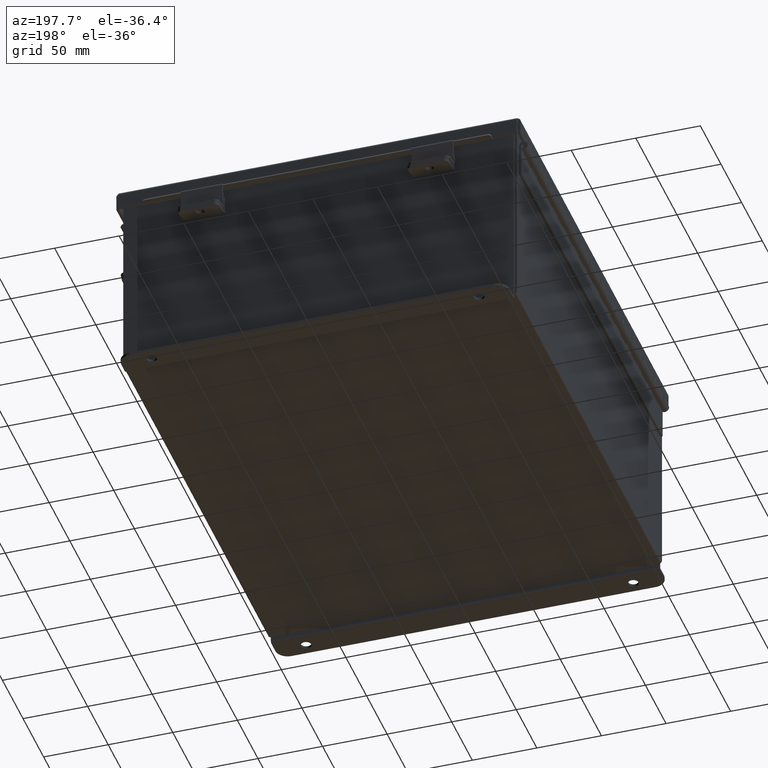
[diagram: clean part render]
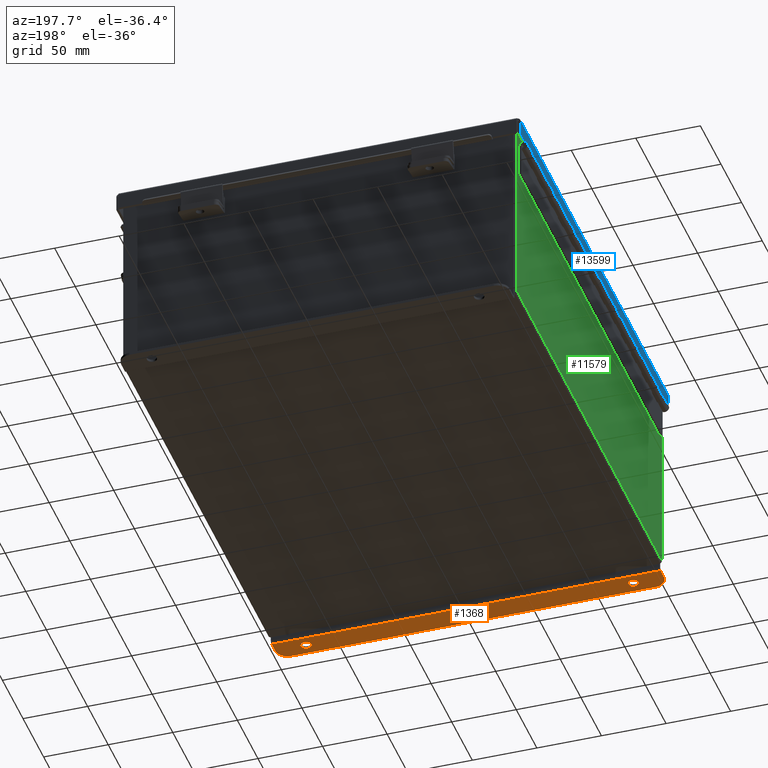
[diagram: same view with three faces highlighted in distinct colors, each labeled with its STEP entity id]
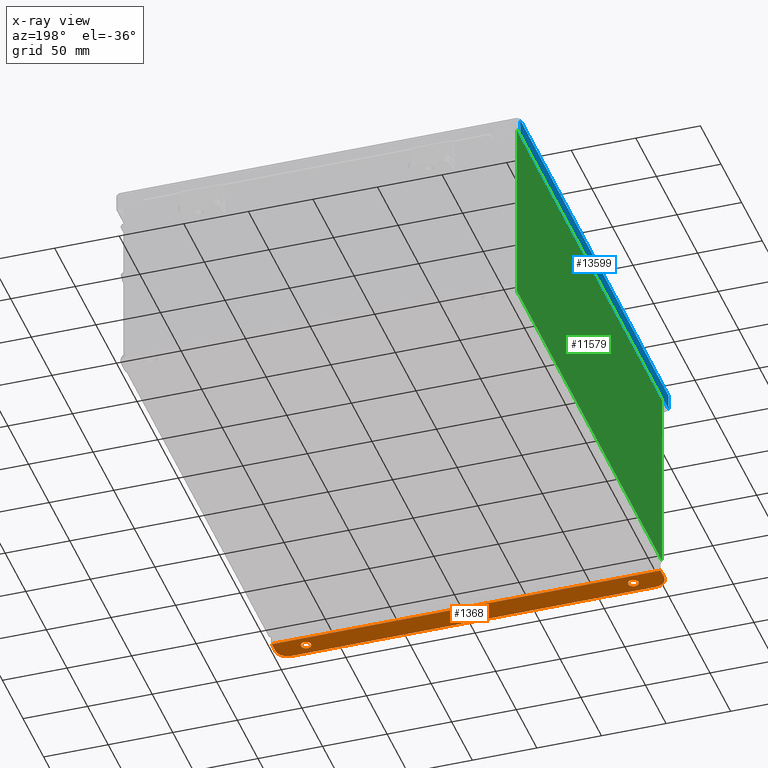
[diagram: x-ray of the same camera — body ghosted, the three highlighted faces saturated]
A machine part, auxiliary view with three faces highlighted in distinct colors.
The next image is the same camera in x-ray (body ghosted, the three faces saturated) — at least one of them is partly hidden behind the body in this view.
Their STEP definitions:

[orange] entity #1368 — the highlighted planar face has unit normal (0, -0, 1).
#54 = EDGE_CURVE ( 'NONE', #14708, #2206, #18965, .T. ) ;
#479 = DIRECTION ( 'NONE',  ( 0.0000000000000000000, -3.362274453740631800E-015, -1.000000000000000000 ) ) ;
#543 = FACE_OUTER_BOUND ( 'NONE', #10640, .T. ) ;
#554 = CARTESIAN_POINT ( 'NONE',  ( 5.925299999999999100, -1.092739197465705300E-014, -3.187000000000004700 ) ) ;
#676 = DIRECTION ( 'NONE',  ( 0.0000000000000000000, -3.362274453740631800E-015, -1.000000000000000000 ) ) ;
#754 = VERTEX_POINT ( 'NONE', #8982 ) ;
#857 = CARTESIAN_POINT ( 'NONE',  ( 5.550299999999999100, 0.7378000000000000100, -3.187000000000002900 ) ) ;
#1368 = ADVANCED_FACE ( 'NONE', ( #8362, #12270, #543 ), #18730, .F. ) ;
#2101 = ORIENTED_EDGE ( 'NONE', *, *, #15542, .F. ) ;
#2206 = VERTEX_POINT ( 'NONE', #18286 ) ;
#2280 = AXIS2_PLACEMENT_3D ( 'NONE', #17185, #7561, #3155 ) ;
#2465 = CARTESIAN_POINT ( 'NONE',  ( -5.550299999999999100, 0.7377999999999912400, -3.187000000000002900 ) ) ;
#2615 = VECTOR ( 'NONE', #7885, 39.37007874015748100 ) ;
#2813 = AXIS2_PLACEMENT_3D ( 'NONE', #9266, #479, #10767 ) ;
#2926 = CARTESIAN_POINT ( 'NONE',  ( -5.925300000000001800, -1.966930555438269700E-014, -3.187000000000000300 ) ) ;
#3155 = DIRECTION ( 'NONE',  ( -4.919856193148104900E-031, -1.000000000000000000, 3.702694488566362300E-015 ) ) ;
#3640 = CARTESIAN_POINT ( 'NONE',  ( 4.987799999999998200, 0.3627999999999997300, -3.187000000000001200 ) ) ;
#3952 = DIRECTION ( 'NONE',  ( 1.000000000000000000, 4.910036603141682400E-031, -0.0000000000000000000 ) ) ;
#4119 = EDGE_CURVE ( 'NONE', #13431, #16271, #6941, .T. ) ;
#4193 = DIRECTION ( 'NONE',  ( 1.000000000000000000, 4.910036603141682400E-031, 0.0000000000000000000 ) ) ;
#4754 = CARTESIAN_POINT ( 'NONE',  ( 5.925299999999999100, 0.3628000000000008400, -3.187000000000001200 ) ) ;
#4765 = EDGE_LOOP ( 'NONE', ( #8567, #18710 ) ) ;
#5093 = DIRECTION ( 'NONE',  ( 0.0000000000000000000, 1.000000000000000000, -3.502369222646487000E-015 ) ) ;
#5754 = LINE ( 'NONE', #14468, #12154 ) ;
#6369 = AXIS2_PLACEMENT_3D ( 'NONE', #3640, #13889, #5093 ) ;
#6416 = CARTESIAN_POINT ( 'NONE',  ( 5.550299999999999100, 0.3628000000000008400, -3.187000000000005600 ) ) ;
#6941 = CIRCLE ( 'NONE', #7780, 0.3750000000000000600 ) ;
#7135 = CARTESIAN_POINT ( 'NONE',  ( -4.987800000000000900, 0.3627999999999997300, -3.187000000000001200 ) ) ;
#7546 = CARTESIAN_POINT ( 'NONE',  ( 5.925299999999999100, 0.01300000000000120000, -3.187000000000004700 ) ) ;
#7561 = DIRECTION ( 'NONE',  ( 0.0000000000000000000, 3.702694488566362300E-015, 1.000000000000000000 ) ) ;
#7648 = EDGE_CURVE ( 'NONE', #16271, #11989, #5754, .T. ) ;
#7736 = EDGE_CURVE ( 'NONE', #14708, #13431, #8255, .T. ) ;
#7780 = AXIS2_PLACEMENT_3D ( 'NONE', #9353, #11834, #12339 ) ;
#7802 = VECTOR ( 'NONE', #10203, 39.37007874015748100 ) ;
#7885 = DIRECTION ( 'NONE',  ( -4.919856193148104900E-031, -1.000000000000000000, 3.702694488566362300E-015 ) ) ;
#7897 = DIRECTION ( 'NONE',  ( 0.0000000000000000000, -1.000000000000000000, 4.370956789862820400E-015 ) ) ;
#8255 = LINE ( 'NONE', #2926, #7802 ) ;
#8362 = FACE_BOUND ( 'NONE', #16812, .T. ) ;
#8567 = ORIENTED_EDGE ( 'NONE', *, *, #10019, .F. ) ;
#8584 = DIRECTION ( 'NONE',  ( 0.0000000000000000000, 1.000000000000000000, -3.502369222646487000E-015 ) ) ;
#8982 = CARTESIAN_POINT ( 'NONE',  ( -4.987800000000000900, 0.5187999999999999300, -3.187000000000001600 ) ) ;
#9033 = ORIENTED_EDGE ( 'NONE', *, *, #13463, .T. ) ;
#9266 = CARTESIAN_POINT ( 'NONE',  ( 4.987799999999998200, 0.3627999999999997300, -3.187000000000001200 ) ) ;
#9267 = ORIENTED_EDGE ( 'NONE', *, *, #11878, .T. ) ;
#9353 = CARTESIAN_POINT ( 'NONE',  ( -5.550299999999999100, 0.3627999999999997300, -3.187000000000005600 ) ) ;
#9411 = VERTEX_POINT ( 'NONE', #4754 ) ;
#9469 = CARTESIAN_POINT ( 'NONE',  ( -4.987800000000000900, 0.3627999999999997300, -3.187000000000001200 ) ) ;
#10019 = EDGE_CURVE ( 'NONE', #15065, #10142, #18543, .T. ) ;
#10142 = VERTEX_POINT ( 'NONE', #15300 ) ;
#10157 = CIRCLE ( 'NONE', #13105, 0.1560000000000001900 ) ;
#10203 = DIRECTION ( 'NONE',  ( 4.919856193148104900E-031, 1.000000000000000000, -3.702694488566362300E-015 ) ) ;
#10602 = ORIENTED_EDGE ( 'NONE', *, *, #15230, .F. ) ;
#10640 = EDGE_LOOP ( 'NONE', ( #15756, #11064, #16346, #9033, #9267, #11599 ) ) ;
#10767 = DIRECTION ( 'NONE',  ( 0.0000000000000000000, 1.000000000000000000, -3.502369222646487000E-015 ) ) ;
#10876 = CIRCLE ( 'NONE', #13487, 0.1560000000000001900 ) ;
#10959 = DIRECTION ( 'NONE',  ( 0.0000000000000000000, 1.000000000000000000, -3.502369222646487000E-015 ) ) ;
#11064 = ORIENTED_EDGE ( 'NONE', *, *, #4119, .T. ) ;
#11599 = ORIENTED_EDGE ( 'NONE', *, *, #54, .F. ) ;
#11805 = AXIS2_PLACEMENT_3D ( 'NONE', #6416, #16700, #7897 ) ;
#11834 = DIRECTION ( 'NONE',  ( -0.0000000000000000000, -3.702694488566362300E-015, -1.000000000000000000 ) ) ;
#11852 = EDGE_CURVE ( 'NONE', #10142, #15065, #18239, .T. ) ;
#11878 = EDGE_CURVE ( 'NONE', #9411, #2206, #17795, .T. ) ;
#11989 = VERTEX_POINT ( 'NONE', #857 ) ;
#12154 = VECTOR ( 'NONE', #4193, 39.37007874015748100 ) ;
#12270 = FACE_BOUND ( 'NONE', #4765, .T. ) ;
#12339 = DIRECTION ( 'NONE',  ( 0.0000000000000000000, -1.000000000000000000, 4.370956789862820400E-015 ) ) ;
#12963 = VERTEX_POINT ( 'NONE', #16449 ) ;
#13105 = AXIS2_PLACEMENT_3D ( 'NONE', #9469, #676, #10959 ) ;
#13431 = VERTEX_POINT ( 'NONE', #15146 ) ;
#13463 = EDGE_CURVE ( 'NONE', #11989, #9411, #16594, .T. ) ;
#13487 = AXIS2_PLACEMENT_3D ( 'NONE', #7135, #17415, #8584 ) ;
#13889 = DIRECTION ( 'NONE',  ( 0.0000000000000000000, -3.362274453740631800E-015, -1.000000000000000000 ) ) ;
#14417 = CARTESIAN_POINT ( 'NONE',  ( -5.925300000000000000, 0.01299999999999245900, -3.187000000000000300 ) ) ;
#14468 = CARTESIAN_POINT ( 'NONE',  ( -2.035385365534024800E-024, 0.7378000000000000100, -3.187000000000002900 ) ) ;
#14708 = VERTEX_POINT ( 'NONE', #14417 ) ;
#15065 = VERTEX_POINT ( 'NONE', #15409 ) ;
#15076 = VECTOR ( 'NONE', #3952, 39.37007874015748100 ) ;
#15146 = CARTESIAN_POINT ( 'NONE',  ( -5.925300000000001800, 0.3627999999999920700, -3.187000000000005600 ) ) ;
#15230 = EDGE_CURVE ( 'NONE', #12963, #754, #10876, .T. ) ;
#15300 = CARTESIAN_POINT ( 'NONE',  ( 4.987800000000007100, 0.2067999999999996000, -3.187000000000000700 ) ) ;
#15409 = CARTESIAN_POINT ( 'NONE',  ( 4.987799999999998200, 0.5187999999999999300, -3.187000000000001600 ) ) ;
#15542 = EDGE_CURVE ( 'NONE', #754, #12963, #10157, .T. ) ;
#15756 = ORIENTED_EDGE ( 'NONE', *, *, #7736, .T. ) ;
#16271 = VERTEX_POINT ( 'NONE', #2465 ) ;
#16346 = ORIENTED_EDGE ( 'NONE', *, *, #7648, .T. ) ;
#16449 = CARTESIAN_POINT ( 'NONE',  ( -4.987799999999992000, 0.2067999999999996000, -3.187000000000000700 ) ) ;
#16594 = CIRCLE ( 'NONE', #11805, 0.3750000000000000600 ) ;
#16700 = DIRECTION ( 'NONE',  ( -0.0000000000000000000, -3.702694488566362300E-015, -1.000000000000000000 ) ) ;
#16812 = EDGE_LOOP ( 'NONE', ( #2101, #10602 ) ) ;
#17185 = CARTESIAN_POINT ( 'NONE',  ( 0.0000000000000000000, -1.092739197465705300E-014, -3.187000000000000700 ) ) ;
#17415 = DIRECTION ( 'NONE',  ( 0.0000000000000000000, -3.362274453740631800E-015, -1.000000000000000000 ) ) ;
#17795 = LINE ( 'NONE', #554, #2615 ) ;
#18239 = CIRCLE ( 'NONE', #2813, 0.1560000000000001900 ) ;
#18286 = CARTESIAN_POINT ( 'NONE',  ( 5.925299999999999100, 0.01300000000000010700, -3.187000000000004700 ) ) ;
#18543 = CIRCLE ( 'NONE', #6369, 0.1560000000000001900 ) ;
#18710 = ORIENTED_EDGE ( 'NONE', *, *, #11852, .F. ) ;
#18730 = PLANE ( 'NONE',  #2280 ) ;
#18965 = LINE ( 'NONE', #7546, #15076 ) ;

[blue] entity #13599 — the highlighted planar face has unit normal (1, -0, 0).
#12 = VERTEX_POINT ( 'NONE', #650 ) ;
#650 = CARTESIAN_POINT ( 'NONE',  ( 6.156250000000000000, 7.074478932188133800, 0.01300000000000086700 ) ) ;
#1594 = EDGE_CURVE ( 'NONE', #12, #18485, #17328, .T. ) ;
#1779 = CARTESIAN_POINT ( 'NONE',  ( 6.156250000000000000, 7.074478932188133800, -2.787081030857980700E-014 ) ) ;
#2326 = DIRECTION ( 'NONE',  ( 4.484872552701437800E-015, 0.0000000000000000000, 1.000000000000000000 ) ) ;
#2864 = VERTEX_POINT ( 'NONE', #14752 ) ;
#3065 = FACE_OUTER_BOUND ( 'NONE', #3959, .T. ) ;
#3669 = LINE ( 'NONE', #9608, #18352 ) ;
#3763 = DIRECTION ( 'NONE',  ( -3.424136966969388400E-031, -1.000000000000000000, -7.634859021594445400E-017 ) ) ;
#3865 = VERTEX_POINT ( 'NONE', #14758 ) ;
#3959 = EDGE_LOOP ( 'NONE', ( #9549, #16529, #15395, #7900 ) ) ;
#4486 = VECTOR ( 'NONE', #3763, 39.37007874015748100 ) ;
#4569 = AXIS2_PLACEMENT_3D ( 'NONE', #12564, #15531, #6723 ) ;
#5157 = VECTOR ( 'NONE', #2326, 39.37007874015748100 ) ;
#5279 = DIRECTION ( 'NONE',  ( 0.0000000000000000000, -1.000000000000000000, 0.0000000000000000000 ) ) ;
#6723 = DIRECTION ( 'NONE',  ( 4.484872552701437800E-015, 0.0000000000000000000, 1.000000000000000000 ) ) ;
#6996 = DIRECTION ( 'NONE',  ( 4.484872552701437800E-015, -0.0000000000000000000, 1.000000000000000000 ) ) ;
#7382 = LINE ( 'NONE', #14312, #7833 ) ;
#7833 = VECTOR ( 'NONE', #6996, 39.37007874015748100 ) ;
#7900 = ORIENTED_EDGE ( 'NONE', *, *, #18001, .F. ) ;
#8030 = EDGE_CURVE ( 'NONE', #18485, #2864, #3669, .T. ) ;
#9444 = CARTESIAN_POINT ( 'NONE',  ( 6.156250000000002700, 7.074478932188133000, 0.4872999999999997300 ) ) ;
#9549 = ORIENTED_EDGE ( 'NONE', *, *, #12517, .F. ) ;
#9608 = CARTESIAN_POINT ( 'NONE',  ( 6.156250000000002700, -1.140647937826210200E-017, 0.4872999999999997300 ) ) ;
#11076 = PLANE ( 'NONE',  #4569 ) ;
#12517 = EDGE_CURVE ( 'NONE', #12, #3865, #16188, .T. ) ;
#12544 = CARTESIAN_POINT ( 'NONE',  ( 6.156250000000000000, -7.156250000000002700, 0.01299999999999978100 ) ) ;
#12564 = CARTESIAN_POINT ( 'NONE',  ( 6.156250000000000000, -1.140647937826210200E-017, -2.787081030857980700E-014 ) ) ;
#13599 = ADVANCED_FACE ( 'NONE', ( #3065 ), #11076, .F. ) ;
#14312 = CARTESIAN_POINT ( 'NONE',  ( 6.156250000000000000, -7.074478932188137400, -3.350199796867980800E-016 ) ) ;
#14752 = CARTESIAN_POINT ( 'NONE',  ( 6.156250000000002700, -7.074478932188137400, 0.4872999999999997300 ) ) ;
#14758 = CARTESIAN_POINT ( 'NONE',  ( 6.156250000000000000, -7.074478932188138300, 0.01299999999999974100 ) ) ;
#15395 = ORIENTED_EDGE ( 'NONE', *, *, #8030, .T. ) ;
#15531 = DIRECTION ( 'NONE',  ( -1.000000000000000000, 0.0000000000000000000, 4.484872552701437800E-015 ) ) ;
#16188 = LINE ( 'NONE', #12544, #4486 ) ;
#16529 = ORIENTED_EDGE ( 'NONE', *, *, #1594, .T. ) ;
#17328 = LINE ( 'NONE', #1779, #5157 ) ;
#18001 = EDGE_CURVE ( 'NONE', #3865, #2864, #7382, .T. ) ;
#18352 = VECTOR ( 'NONE', #5279, 39.37007874015748100 ) ;
#18485 = VERTEX_POINT ( 'NONE', #9444 ) ;

[green] entity #11579 — the highlighted planar face has unit normal (1, 0, 0).
#983 = LINE ( 'NONE', #13767, #16168 ) ;
#1247 = DIRECTION ( 'NONE',  ( 3.548703509357741000E-015, 0.0000000000000000000, -1.000000000000000000 ) ) ;
#1871 = EDGE_CURVE ( 'NONE', #7495, #18096, #983, .T. ) ;
#1929 = DIRECTION ( 'NONE',  ( -3.548703509357741800E-015, 3.735477378271307500E-016, 1.000000000000000000 ) ) ;
#1950 = DIRECTION ( 'NONE',  ( -0.0000000000000000000, 1.000000000000000000, -0.0000000000000000000 ) ) ;
#2202 = DIRECTION ( 'NONE',  ( 3.548703509357741800E-015, 0.0000000000000000000, -1.000000000000000000 ) ) ;
#2320 = CARTESIAN_POINT ( 'NONE',  ( -6.000000000000021300, -6.925299999999997300, 5.837599999999999200 ) ) ;
#3786 = CARTESIAN_POINT ( 'NONE',  ( -6.000000000000000900, -6.925299999999999100, 0.01299999999999984300 ) ) ;
#4170 = EDGE_CURVE ( 'NONE', #6950, #6545, #10382, .T. ) ;
#5161 = AXIS2_PLACEMENT_3D ( 'NONE', #11444, #10029, #1247 ) ;
#6269 = ORIENTED_EDGE ( 'NONE', *, *, #1871, .T. ) ;
#6382 = VECTOR ( 'NONE', #2202, 39.37007874015748100 ) ;
#6545 = VERTEX_POINT ( 'NONE', #18089 ) ;
#6620 = CARTESIAN_POINT ( 'NONE',  ( -6.000000000000000900, 6.925299999999998200, 0.01299999999999984300 ) ) ;
#6950 = VERTEX_POINT ( 'NONE', #3786 ) ;
#7495 = VERTEX_POINT ( 'NONE', #2320 ) ;
#7697 = FACE_OUTER_BOUND ( 'NONE', #17840, .T. ) ;
#10029 = DIRECTION ( 'NONE',  ( 1.000000000000000000, 0.0000000000000000000, 3.548703509357741000E-015 ) ) ;
#10063 = EDGE_CURVE ( 'NONE', #18096, #6545, #10264, .T. ) ;
#10149 = VECTOR ( 'NONE', #1929, 39.37007874015748100 ) ;
#10264 = LINE ( 'NONE', #18321, #6382 ) ;
#10382 = LINE ( 'NONE', #6620, #14296 ) ;
#10908 = ORIENTED_EDGE ( 'NONE', *, *, #13397, .T. ) ;
#11444 = CARTESIAN_POINT ( 'NONE',  ( -6.000000000000000900, 0.0000000000000000000, -2.155598807500707700E-014 ) ) ;
#11579 = ADVANCED_FACE ( 'NONE', ( #7697 ), #18819, .F. ) ;
#11836 = ORIENTED_EDGE ( 'NONE', *, *, #10063, .T. ) ;
#12122 = CARTESIAN_POINT ( 'NONE',  ( -6.000000000000000900, -6.925300000000000900, -1.896926950600622800E-014 ) ) ;
#13079 = CARTESIAN_POINT ( 'NONE',  ( -6.000000000000021300, 6.925299999999998200, 5.837599999999999200 ) ) ;
#13397 = EDGE_CURVE ( 'NONE', #6950, #7495, #17538, .T. ) ;
#13767 = CARTESIAN_POINT ( 'NONE',  ( -6.000000000000021300, -6.925299999999998200, 5.837599999999999200 ) ) ;
#14296 = VECTOR ( 'NONE', #1950, 39.37007874015748100 ) ;
#15839 = DIRECTION ( 'NONE',  ( 0.0000000000000000000, 1.000000000000000000, 0.0000000000000000000 ) ) ;
#16168 = VECTOR ( 'NONE', #15839, 39.37007874015748100 ) ;
#17538 = LINE ( 'NONE', #12122, #10149 ) ;
#17840 = EDGE_LOOP ( 'NONE', ( #6269, #11836, #18724, #10908 ) ) ;
#18089 = CARTESIAN_POINT ( 'NONE',  ( -6.000000000000000900, 6.925299999999998200, 0.01299999999999984300 ) ) ;
#18096 = VERTEX_POINT ( 'NONE', #13079 ) ;
#18321 = CARTESIAN_POINT ( 'NONE',  ( -6.000000000000000900, 6.925299999999998200, -2.155598807500707700E-014 ) ) ;
#18724 = ORIENTED_EDGE ( 'NONE', *, *, #4170, .F. ) ;
#18819 = PLANE ( 'NONE',  #5161 ) ;